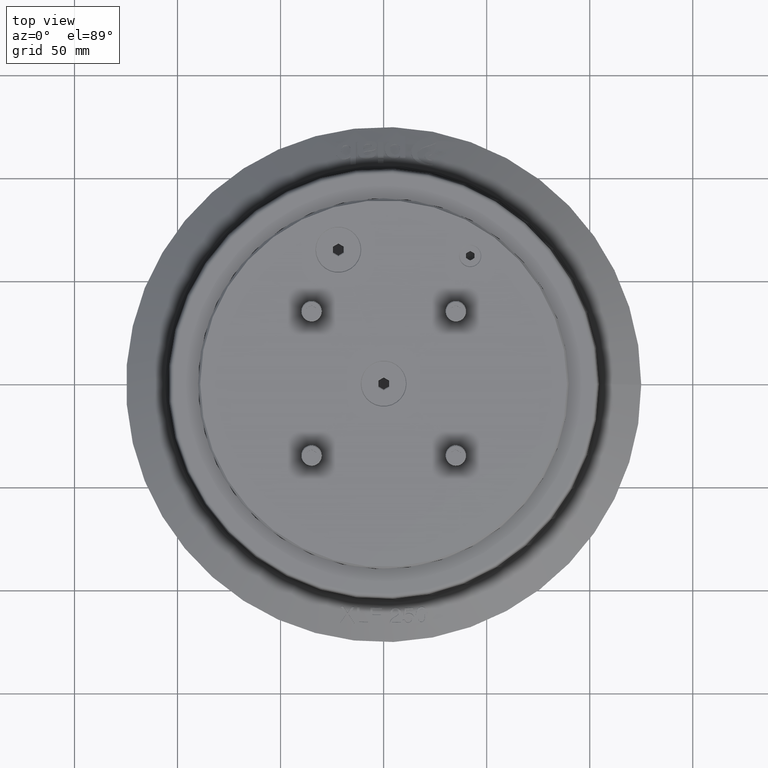
[diagram: clean part render]
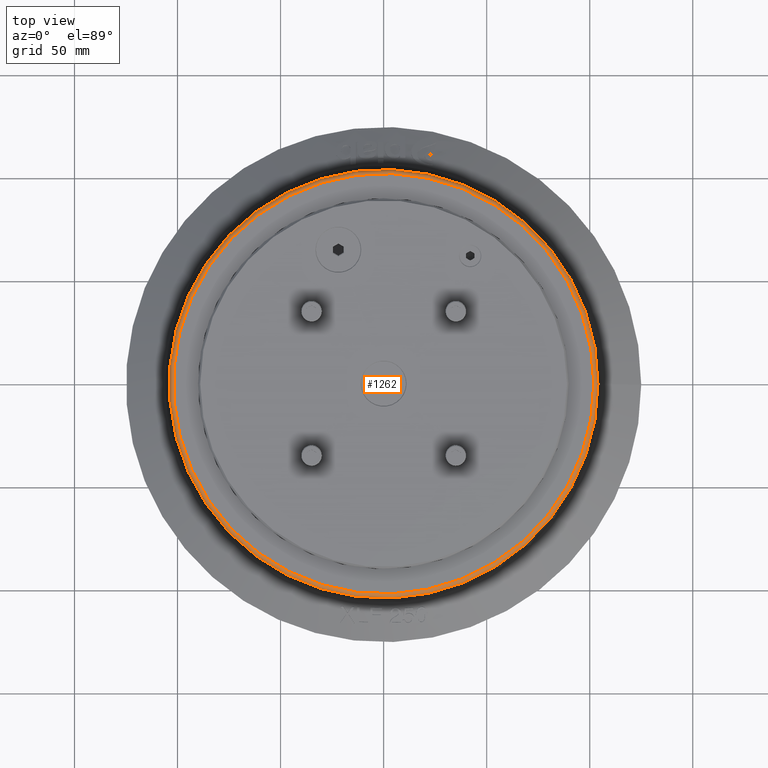
[diagram: same view with one face highlighted and labeled with its STEP entity id]
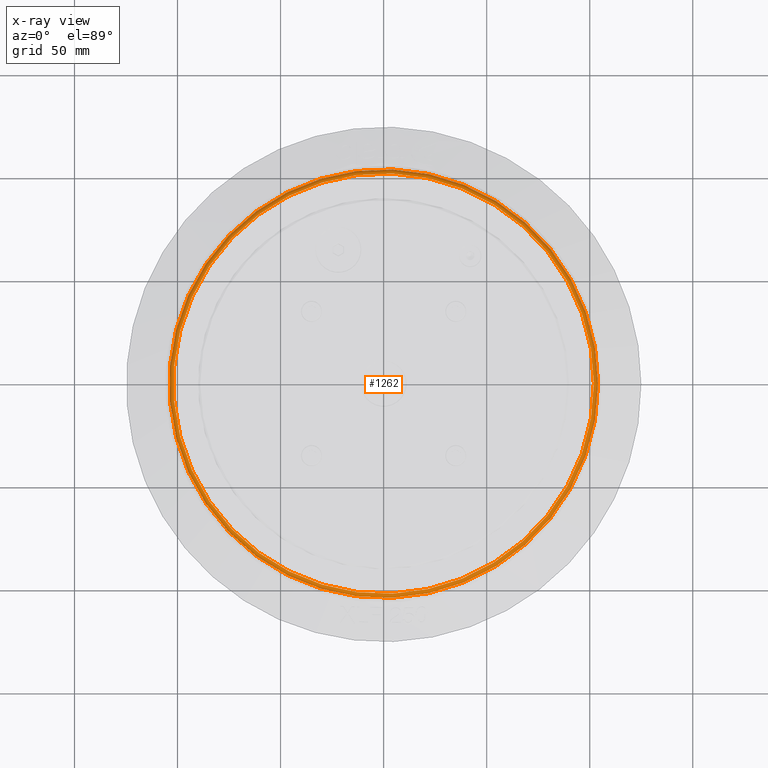
[diagram: x-ray of the same camera — body ghosted, the highlighted face saturated]
A machine part, top view. The second image highlights one B-rep face of the part: STEP entity #1262.
The next image is the same camera in x-ray: the body ghosted, the highlighted face saturated — about 0% of this face is hidden behind the body in this view.
In plain terms, the highlighted toroidal blend (fillet) surface has major radius 102.005 mm and minor (blend) radius 2 mm.
Its self-contained STEP definition (entity closure, byte-faithful):
#1262 = ADVANCED_FACE( '', ( #2999, #3000 ), #3001, .T. );
#2999 = FACE_OUTER_BOUND( '', #5745, .T. );
#3000 = FACE_OUTER_BOUND( '', #5746, .T. );
#3001 = TOROIDAL_SURFACE( '', #5747, 102.004871899480, 2.00000000000000 );
#5745 = EDGE_LOOP( '', ( #10779 ) );
#5746 = EDGE_LOOP( '', ( #10780 ) );
#5747 = AXIS2_PLACEMENT_3D( '', #10781, #10782, #10783 );
#10779 = ORIENTED_EDGE( '', *, *, #15817, .F. );
#10780 = ORIENTED_EDGE( '', *, *, #15818, .T. );
#10781 = CARTESIAN_POINT( '', ( 0.000000000000000, 0.000000000000000, 9.00000000000064 ) );
#10782 = DIRECTION( '', ( 0.000000000000000, 0.000000000000000, 1.00000000000000 ) );
#10783 = DIRECTION( '', ( 1.00000000000000, 0.000000000000000, 0.000000000000000 ) );
#15817 = EDGE_CURVE( '', #18584, #18584, #18585, .T. );
#15818 = EDGE_CURVE( '', #18586, #18586, #18587, .T. );
#18584 = VERTEX_POINT( '', #22778 );
#18585 = CIRCLE( '', #22779, 102.004871899480 );
#18586 = VERTEX_POINT( '', #22780 );
#18587 = CIRCLE( '', #22781, 104.000000000000 );
#22778 = CARTESIAN_POINT( '', ( 102.004871899480, 0.000000000000000, 11.0000000000006 ) );
#22779 = AXIS2_PLACEMENT_3D( '', #28395, #28396, #28397 );
#22780 = CARTESIAN_POINT( '', ( 104.000000000000, 0.000000000000000, 9.13951294748890 ) );
#22781 = AXIS2_PLACEMENT_3D( '', #28398, #28399, #28400 );
#28395 = CARTESIAN_POINT( '', ( 0.000000000000000, 0.000000000000000, 11.0000000000006 ) );
#28396 = DIRECTION( '', ( 0.000000000000000, 0.000000000000000, 1.00000000000000 ) );
#28397 = DIRECTION( '', ( 1.00000000000000, 0.000000000000000, 0.000000000000000 ) );
#28398 = CARTESIAN_POINT( '', ( 0.000000000000000, 0.000000000000000, 9.13951294748890 ) );
#28399 = DIRECTION( '', ( 0.000000000000000, 0.000000000000000, 1.00000000000000 ) );
#28400 = DIRECTION( '', ( 1.00000000000000, 0.000000000000000, 0.000000000000000 ) );